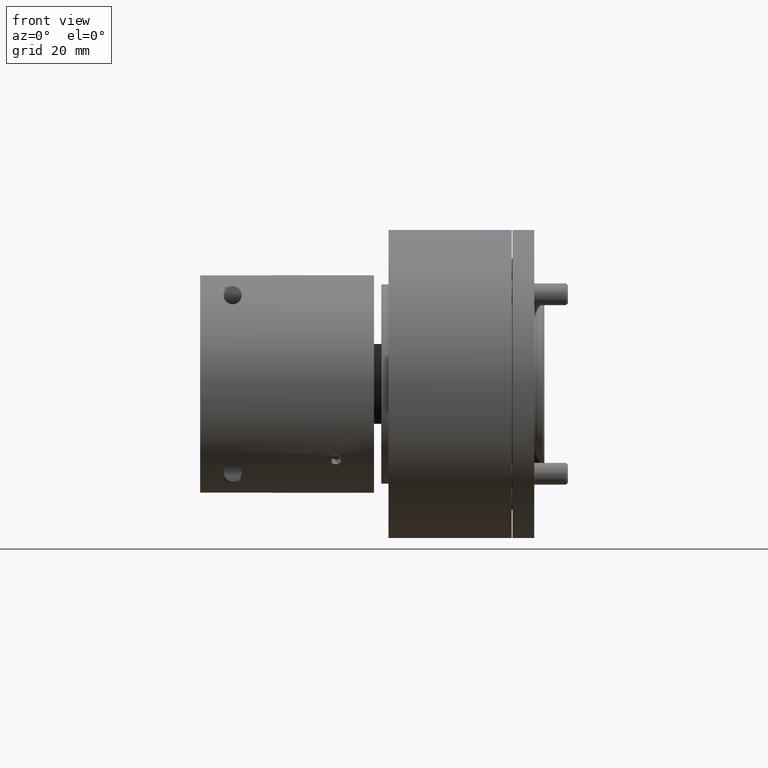
[diagram: clean part render]
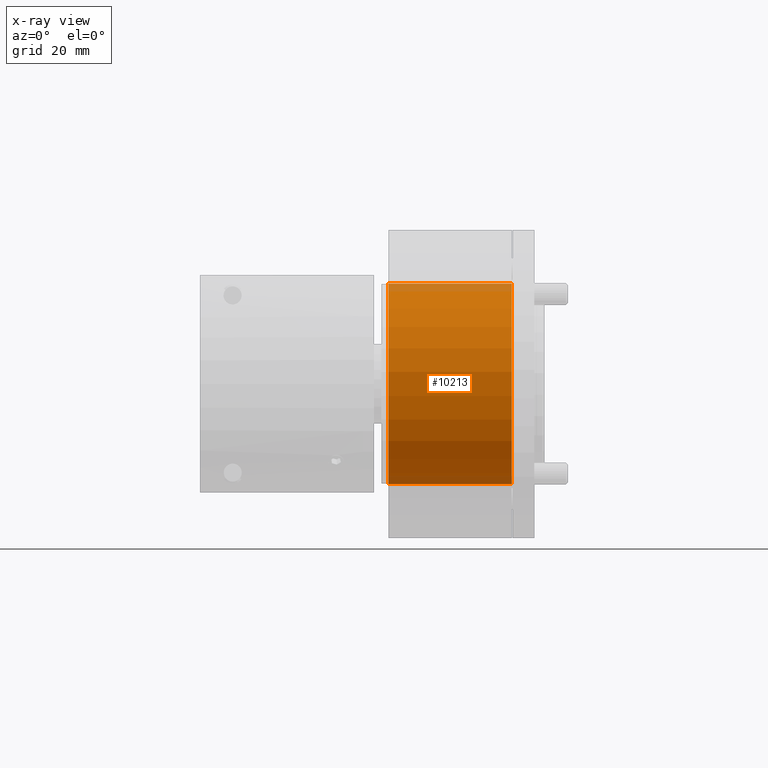
[diagram: x-ray — body ghosted, one internal face saturated and labeled with its STEP entity id]
A machine part, front view, then the same camera in x-ray: the body is ghosted and one INTERNAL B-rep face — a face not visible from any outside direction — is saturated and labeled: STEP entity #10213.
In plain terms, the highlighted cylindrical surface (partial cylindrical patch) has radius 27.675 mm, axis along (1, -0, 0).
Its self-contained STEP definition (entity closure, byte-faithful):
#563 = VERTEX_POINT ( 'NONE', #6974 ) ;
#853 = CARTESIAN_POINT ( 'NONE',  ( 36.79999999999999716, 3.389210016640300274E-15, -27.67500000000000071 ) ) ;
#1183 = ORIENTED_EDGE ( 'NONE', *, *, #8898, .T. ) ;
#1368 = CYLINDRICAL_SURFACE ( 'NONE', #3378, 27.67500000000000071 ) ;
#2099 = VECTOR ( 'NONE', #13455, 1000.000000000000000 ) ;
#2564 = LINE ( 'NONE', #7348, #4931 ) ;
#2946 = EDGE_CURVE ( 'NONE', #4994, #563, #13629, .T. ) ;
#3378 = AXIS2_PLACEMENT_3D ( 'NONE', #10591, #12019, #15180 ) ;
#3673 = EDGE_CURVE ( 'NONE', #15392, #4994, #11473, .T. ) ;
#3977 = CARTESIAN_POINT ( 'NONE',  ( 36.79999999999999716, 0.000000000000000000, 0.000000000000000000 ) ) ;
#4232 = AXIS2_PLACEMENT_3D ( 'NONE', #16529, #10822, #10691 ) ;
#4507 = CIRCLE ( 'NONE', #4232, 27.67500000000000071 ) ;
#4739 = AXIS2_PLACEMENT_3D ( 'NONE', #3977, #8332, #9886 ) ;
#4931 = VECTOR ( 'NONE', #8780, 1000.000000000000000 ) ;
#4993 = CARTESIAN_POINT ( 'NONE',  ( 36.79999999999999716, 0.000000000000000000, 27.67500000000000071 ) ) ;
#4994 = VERTEX_POINT ( 'NONE', #4993 ) ;
#6974 = CARTESIAN_POINT ( 'NONE',  ( 2.799999999999997158, 0.000000000000000000, 27.67500000000000071 ) ) ;
#7348 = CARTESIAN_POINT ( 'NONE',  ( -39.25928614081220047, 3.389210016640300274E-15, -27.67500000000000071 ) ) ;
#7416 = EDGE_CURVE ( 'NONE', #13477, #563, #4507, .T. ) ;
#7998 = ORIENTED_EDGE ( 'NONE', *, *, #3673, .F. ) ;
#8332 = DIRECTION ( 'NONE',  ( -1.000000000000000000, -0.000000000000000000, -0.000000000000000000 ) ) ;
#8710 = ORIENTED_EDGE ( 'NONE', *, *, #7416, .T. ) ;
#8780 = DIRECTION ( 'NONE',  ( -1.000000000000000000, -0.000000000000000000, -0.000000000000000000 ) ) ;
#8898 = EDGE_CURVE ( 'NONE', #15392, #13477, #2564, .T. ) ;
#9886 = DIRECTION ( 'NONE',  ( 0.000000000000000000, 0.000000000000000000, 1.000000000000000000 ) ) ;
#10213 = ADVANCED_FACE ( 'NONE', ( #17055 ), #1368, .F. ) ;
#10591 = CARTESIAN_POINT ( 'NONE',  ( -39.25928614081220047, 0.000000000000000000, 0.000000000000000000 ) ) ;
#10691 = DIRECTION ( 'NONE',  ( 0.000000000000000000, 0.000000000000000000, 1.000000000000000000 ) ) ;
#10822 = DIRECTION ( 'NONE',  ( -1.000000000000000000, -0.000000000000000000, -0.000000000000000000 ) ) ;
#11473 = CIRCLE ( 'NONE', #4739, 27.67500000000000071 ) ;
#12019 = DIRECTION ( 'NONE',  ( -1.000000000000000000, -0.000000000000000000, -0.000000000000000000 ) ) ;
#13076 = CARTESIAN_POINT ( 'NONE',  ( 2.799999999999997158, 3.389210016640300274E-15, -27.67500000000000071 ) ) ;
#13455 = DIRECTION ( 'NONE',  ( -1.000000000000000000, -0.000000000000000000, -0.000000000000000000 ) ) ;
#13477 = VERTEX_POINT ( 'NONE', #13076 ) ;
#13629 = LINE ( 'NONE', #19292, #2099 ) ;
#15180 = DIRECTION ( 'NONE',  ( 0.000000000000000000, 0.000000000000000000, 1.000000000000000000 ) ) ;
#15392 = VERTEX_POINT ( 'NONE', #853 ) ;
#16107 = ORIENTED_EDGE ( 'NONE', *, *, #2946, .F. ) ;
#16303 = EDGE_LOOP ( 'NONE', ( #7998, #1183, #8710, #16107 ) ) ;
#16529 = CARTESIAN_POINT ( 'NONE',  ( 2.799999999999997158, 0.000000000000000000, 0.000000000000000000 ) ) ;
#17055 = FACE_OUTER_BOUND ( 'NONE', #16303, .T. ) ;
#19292 = CARTESIAN_POINT ( 'NONE',  ( -39.25928614081220047, 0.000000000000000000, 27.67500000000000071 ) ) ;